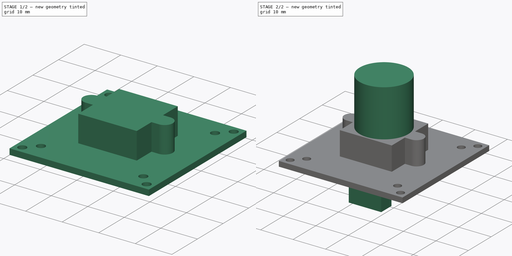
[diagram: build sequence overview — one tinted view per stage of 2, left to right]
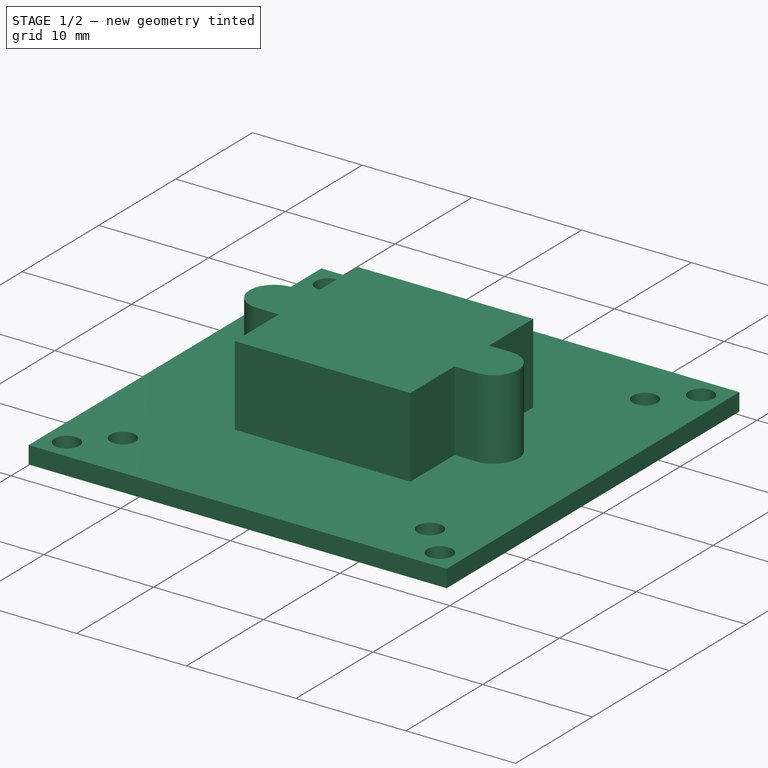
[diagram: stage 1 of 2 — iso view after this stage's code; geometry added in this stage tinted green]
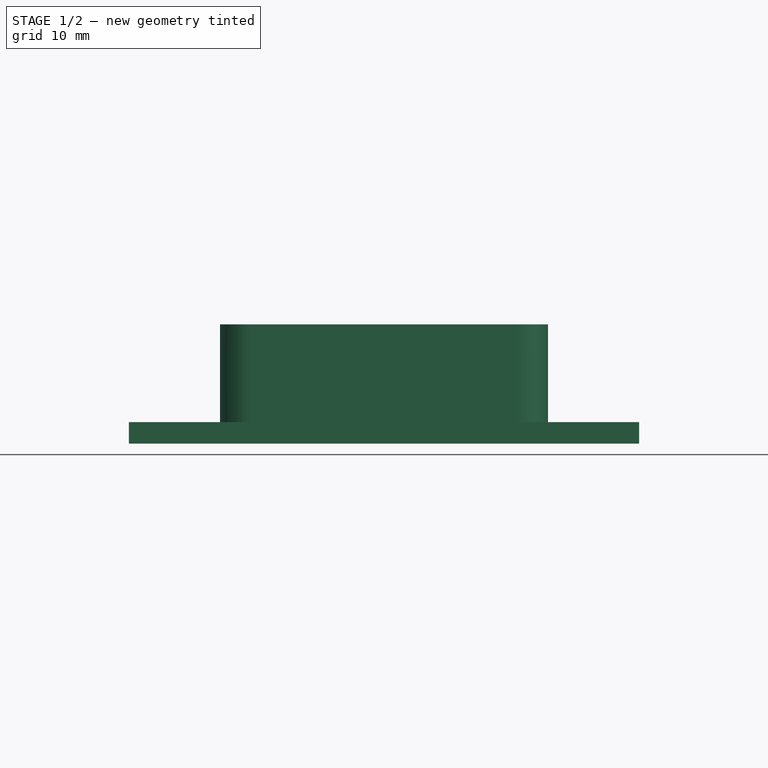
[diagram: stage 1 of 2 — front view after this stage's code; geometry added in this stage tinted green]
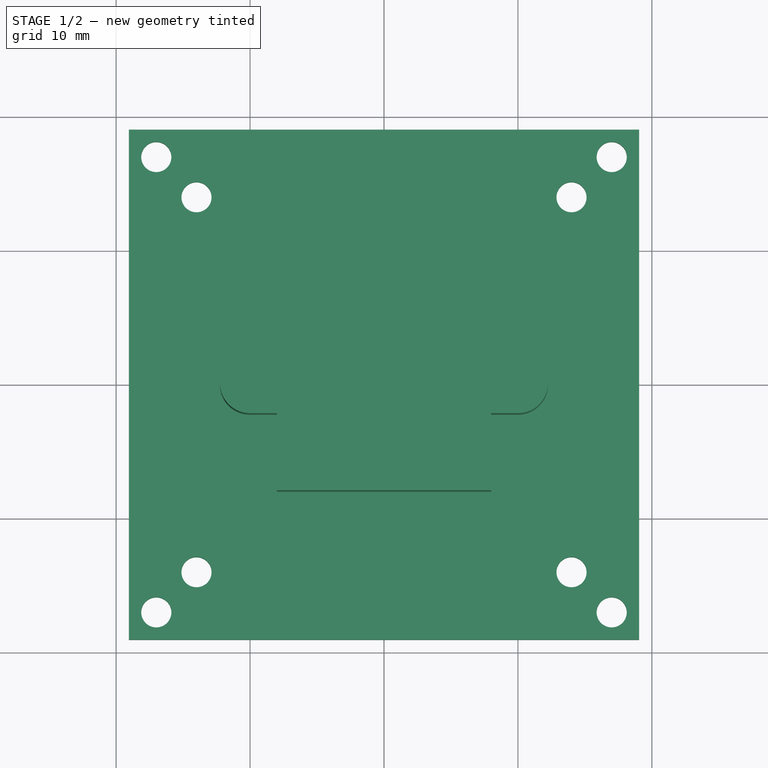
[diagram: stage 1 of 2 — top view after this stage's code; geometry added in this stage tinted green]
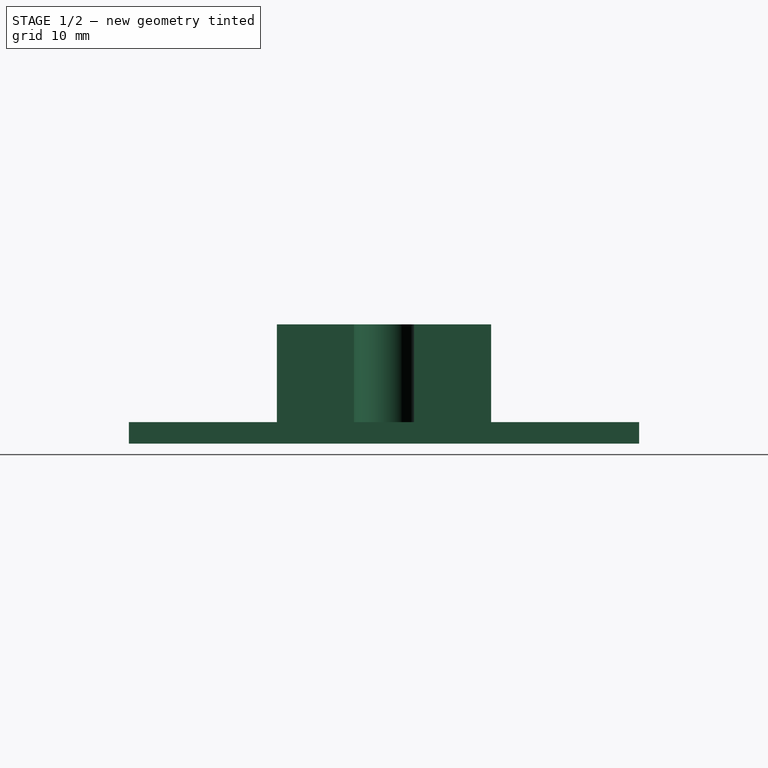
[diagram: stage 1 of 2 — right view after this stage's code; geometry added in this stage tinted green]
FCSTD DOCUMENT  (FreeCAD 2021.922R24301 +4188 (Git))
Label: OTS-0002-00_usb-webcam
License: All rights reserved
LicenseURL: http://en.wikipedia.org/wiki/All_rights_reserved
objects: Sketcher::SketchObject×4, PartDesign::Pad×4, PartDesign::Plane×2, PartDesign::Body×1
note: 19 computed .brp shape members not serialized (recipe doc carries the construction recipe); baked Part::Feature solids carry a one-line shape summary decoded from their .brp

FEATURE [Sketcher::SketchObject] Sketch
  FullyConstrained = true
  MapMode = 5
  Support = -> [XY_Plane]
  sketch-geometry (24):
    g0: LineSegment StartX=-19.05 StartY=19.05 StartZ=0 EndX=19.05 EndY=19.05 EndZ=0
    g1: LineSegment StartX=19.05 StartY=19.05 StartZ=0 EndX=19.05 EndY=-19.05 EndZ=0
    g2: LineSegment StartX=19.05 StartY=-19.05 StartZ=0 EndX=-19.05 EndY=-19.05 EndZ=0
    g3: LineSegment StartX=-19.05 StartY=-19.05 StartZ=0 EndX=-19.05 EndY=19.05 EndZ=0
    g4: LineSegment [constr] StartX=-14 StartY=14 StartZ=0 EndX=14 EndY=14 EndZ=0
    g5: LineSegment [constr] StartX=14 StartY=14 StartZ=0 EndX=14 EndY=-14 EndZ=0
    g6: LineSegment [constr] StartX=14 StartY=-14 StartZ=0 EndX=-14 EndY=-14 EndZ=0
    g7: LineSegment [constr] StartX=-14 StartY=-14 StartZ=0 EndX=-14 EndY=14 EndZ=0
    g8: Circle CenterX=-14 CenterY=14 CenterZ=0 NormalX=0 NormalY=0 NormalZ=1 AngleXU=0 Radius=1.125
    g9: Circle CenterX=14 CenterY=14 CenterZ=0 NormalX=0 NormalY=0 NormalZ=1 AngleXU=0 Radius=1.125
    g10: Circle CenterX=14 CenterY=-14 CenterZ=0 NormalX=0 NormalY=0 NormalZ=1 AngleXU=0 Radius=1.125
    g11: Circle CenterX=-14 CenterY=-14 CenterZ=0 NormalX=0 NormalY=0 NormalZ=1 AngleXU=0 Radius=1.125
    g12: LineSegment [constr] StartX=-17 StartY=17 StartZ=0 EndX=17 EndY=17 EndZ=0
    g13: LineSegment [constr] StartX=17 StartY=17 StartZ=0 EndX=17 EndY=-17 EndZ=0
    g14: LineSegment [constr] StartX=17 StartY=-17 StartZ=0 EndX=-17 EndY=-17 EndZ=0
    g15: LineSegment [constr] StartX=-17 StartY=-17 StartZ=0 EndX=-17 EndY=17 EndZ=0
    g16: Circle CenterX=-17 CenterY=17 CenterZ=0 NormalX=0 NormalY=0 NormalZ=1 AngleXU=0 Radius=1.125
    g17: Circle CenterX=17 CenterY=17 CenterZ=0 NormalX=0 NormalY=0 NormalZ=1 AngleXU=0 Radius=1.125
    g18: Circle CenterX=17 CenterY=-17 CenterZ=0 NormalX=0 NormalY=0 NormalZ=1 AngleXU=0 Radius=1.125
    g19: Circle CenterX=-17 CenterY=-17 CenterZ=0 NormalX=0 NormalY=0 NormalZ=1 AngleXU=0 Radius=1.125
    g20: LineSegment [constr] StartX=-16 StartY=16 StartZ=0 EndX=16 EndY=16 EndZ=0
    g21: LineSegment [constr] StartX=16 StartY=16 StartZ=0 EndX=16 EndY=-16 EndZ=0
    g22: LineSegment [constr] StartX=16 StartY=-16 StartZ=0 EndX=-16 EndY=-16 EndZ=0
    g23: LineSegment [constr] StartX=-16 StartY=-16 StartZ=0 EndX=-16 EndY=16 EndZ=0
  constraints (58):
    c: Coincident(g0,g1)
    c: Coincident(g1,g2)
    c: Coincident(g2,g3)
    c: Coincident(g3,g0)
    c: Horizontal(g2)
    c: Vertical(g1)
    c: DistanceX(g0,g0) = 38.1
    c: DistanceY(g3,g3) = 38.1
    c: Symmetric(g0,g0,g-2)
    c: Symmetric(g2,g0,g-1)
    c: Coincident(g4,g5)
    c: Coincident(g5,g6)
    c: Coincident(g6,g7)
    c: Coincident(g7,g4)
    c: Horizontal(g4)
    c: Vertical(g7)
    c: DistanceX(g4,g4) = 28
    c: Coincident(g8,g4)
    c: Diameter(g8) = 2.25
    c: DistanceY(g5,g5) = 28
    c: Symmetric(g4,g5,g-1)
    c: Symmetric(g5,g6,g-2)
    c: Coincident(g9,g4)
    c: Coincident(g10,g5)
    c: Coincident(g11,g6)
    c: Equal(g9,g10)
    c: Equal(g10,g11)
    c: Equal(g11,g8)
    c: Coincident(g12,g13)
    c: Coincident(g13,g14)
    c: Coincident(g14,g15)
    c: Coincident(g15,g12)
    c: Horizontal(g12)
    c: Horizontal(g14)
    c: Vertical(g13)
    c: Vertical(g15)
    c: DistanceX(g12,g12) = 34
    c: Equal(g13,g12)
    c: Symmetric(g14,g12,g-1)
    c: Coincident(g16,g12)
    c: Coincident(g17,g12)
    c: Coincident(g18,g13)
    c: Coincident(g19,g14)
    c: Equal(g16,g19)
    c: Equal(g19,g18)
    c: Equal(g18,g17)
    c: Diameter(g18) = 2.25
    c: Coincident(g20,g21)
    c: Coincident(g21,g22)
    c: Coincident(g22,g23)
    c: Coincident(g23,g20)
    c: Horizontal(g20)
    c: Horizontal(g22)
    c: Vertical(g21)
    c: Vertical(g23)
    c: Symmetric(g20,g21,g-1)
    c: Equal(g21,g20)
    c: DistanceY(g21,g21) = 32
FEATURE [PartDesign::Pad] Pad
  AddSubType = 0
  CheckUpToFaceLimits = true
  ClaimChildren = false
  Direction = (1,1,1)
  Fit = 0
  FitJoin = 0
  InnerFit = 0
  InnerFitJoin = 0
  InnerTaperAngle = 0
  InnerTaperAngleRev = 0
  Length = 1.6
  Length2 = 100
  NewSolid = false
  Profile = -> Sketch
  Reversed = true
  Suppress = false
  Type = 0
  _ProfileBasedVersion = 0
FEATURE [Sketcher::SketchObject] Sketch001
  FullyConstrained = true
  MapMode = 5
  Support = -> [XY_Plane]
  sketch-geometry (12):
    g0: LineSegment StartX=-8 StartY=2.25 StartZ=0 EndX=-8 EndY=8 EndZ=0
    g1: LineSegment StartX=-8 StartY=8 StartZ=0 EndX=8 EndY=8 EndZ=0
    g2: LineSegment StartX=8 StartY=8 StartZ=0 EndX=8 EndY=2.25 EndZ=0
    g3: LineSegment StartX=-8 StartY=-2.25 StartZ=0 EndX=-8 EndY=-8 EndZ=0
    g4: LineSegment StartX=-8 StartY=-8 StartZ=0 EndX=8 EndY=-8 EndZ=0
    g5: LineSegment StartX=8 StartY=-8 StartZ=0 EndX=8 EndY=-2.25 EndZ=0
    g6: ArcOfCircle CenterX=-10 CenterY=0 CenterZ=0 NormalX=0 NormalY=0 NormalZ=1 AngleXU=0 Radius=2.25 StartAngle=1.5708 EndAngle=4.71239
    g7: ArcOfCircle CenterX=10 CenterY=0 CenterZ=0 NormalX=0 NormalY=0 NormalZ=1 AngleXU=0 Radius=2.25 StartAngle=4.71239 EndAngle=7.85398
    g8: LineSegment StartX=-10 StartY=2.25 StartZ=0 EndX=-8 EndY=2.25 EndZ=0
    g9: LineSegment StartX=-9.99999 StartY=-2.25 StartZ=0 EndX=-8 EndY=-2.25 EndZ=0
    g10: LineSegment StartX=8 StartY=2.25 StartZ=0 EndX=10 EndY=2.25 EndZ=0
    g11: LineSegment StartX=8 StartY=-2.25 StartZ=0 EndX=10 EndY=-2.25 EndZ=0
  constraints (34):
    c: Vertical(g0)
    c: Coincident(g0,g1)
    c: Coincident(g1,g2)
    c: Vertical(g2)
    c: Vertical(g3)
    c: Coincident(g3,g4)
    c: Horizontal(g4)
    c: Coincident(g4,g5)
    c: Vertical(g5)
    c: PointOnObject(g6,g-1)
    c: Tangent(g6,g8) = 1.5708
    c: Coincident(g2,g10)
    c: Coincident(g10,g7)
    c: Coincident(g5,g11)
    c: Coincident(g11,g7)
    c: Coincident(g8,g0)
    c: Horizontal(g8)
    c: Horizontal(g9)
    c: Coincident(g9,g3)
    c: Coincident(g9,g6)
    c: Horizontal(g10)
    c: Horizontal(g11)
    c: Tangent(g7,g10)
    c: Tangent(g7,g11)
    c: Tangent(g6,g9)
    c: DistanceX(g1,g1) = 16
    c: DistanceY(g3,g0) = 16
    c: PointOnObject(g0,g3)
    c: Symmetric(g0,g1,g-2)
    c: Symmetric(g1,g4,g-1)
    c: DistanceY(g5,g2) = 4.5
    c: DistanceY(g3,g0) = 4.5
    c: DistanceX(g6,g7) = 20
    c: Symmetric(g7,g6,g-2)
FEATURE [PartDesign::Pad] Pad001
  AddSubType = 0
  BaseFeature = -> Pad
  CheckUpToFaceLimits = true
  ClaimChildren = false
  Direction = (1,1,1)
  Fit = 0
  FitJoin = 0
  InnerFit = 0
  InnerFitJoin = 0
  InnerTaperAngle = 0
  InnerTaperAngleRev = 0
  Length = 7.3
  Length2 = 100
  NewSolid = false
  Profile = -> Sketch001
  Suppress = false
  Type = 0
  _ProfileBasedVersion = 0
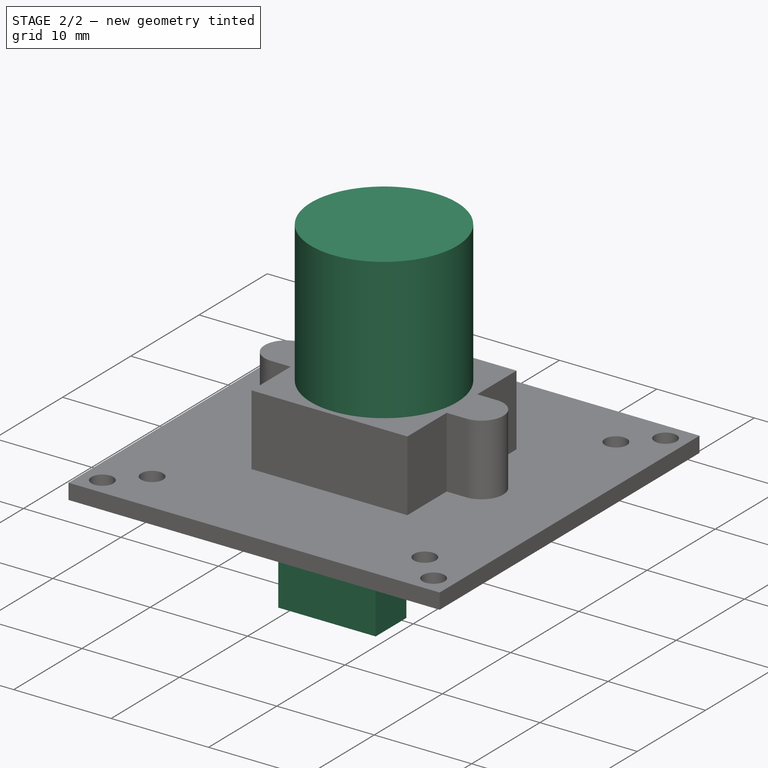
[diagram: stage 2 of 2 — iso view after this stage's code; geometry added in this stage tinted green]
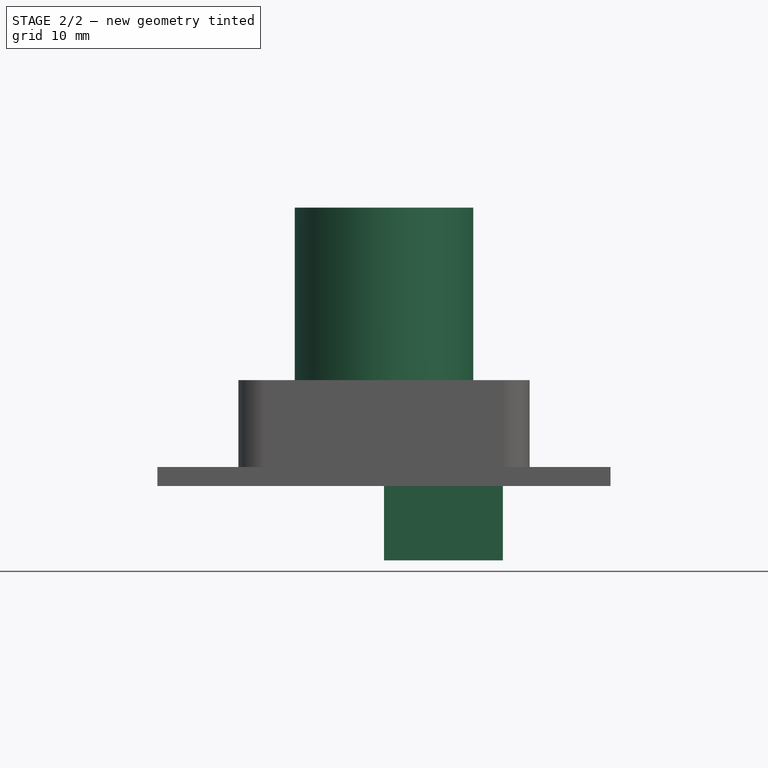
[diagram: stage 2 of 2 — front view after this stage's code; geometry added in this stage tinted green]
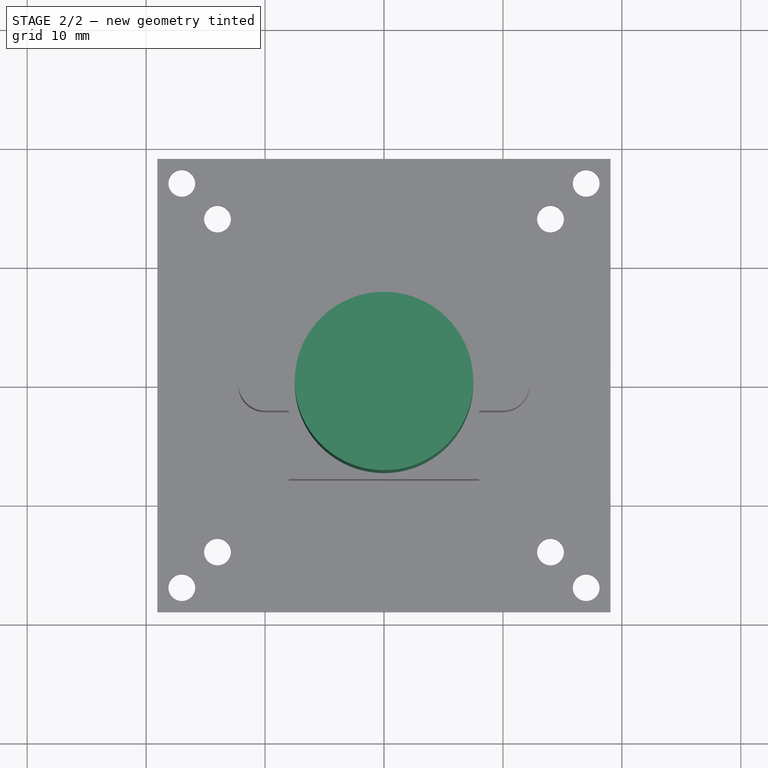
[diagram: stage 2 of 2 — top view after this stage's code; geometry added in this stage tinted green]
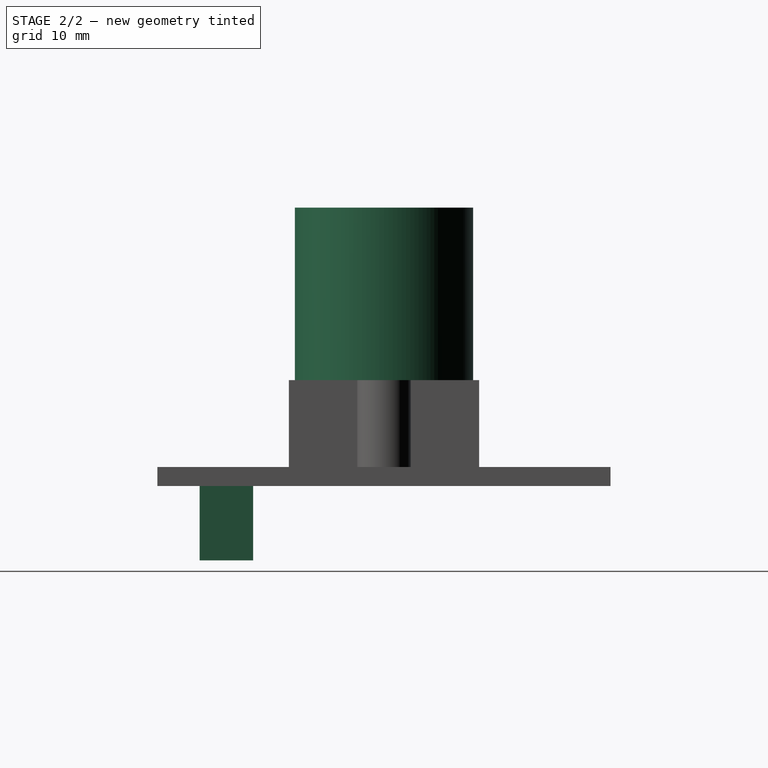
[diagram: stage 2 of 2 — right view after this stage's code; geometry added in this stage tinted green]
FEATURE [PartDesign::Plane] DatumPlane
  Length = 10
  MapMode = 5
  MinimumLength = 10
  MinimumWidth = 10
  Placement = pos=(0,0,7.3) rot=(0,0,1;0rad)
  ResizeMode = 0
  Support = -> [Pad001]
  Width = 10
FEATURE [Sketcher::SketchObject] Sketch002
  FullyConstrained = true
  MapMode = 5
  Placement = pos=(0,0,7.3) rot=(0,0,1;0rad)
  Support = -> [DatumPlane]
  sketch-geometry (1):
    g0: Circle CenterX=0 CenterY=0 CenterZ=0 NormalX=0 NormalY=0 NormalZ=1 AngleXU=0 Radius=7.5
  constraints (2):
    c: Coincident(g0,g-1)
    c: Diameter(g0) = 15
FEATURE [PartDesign::Pad] Pad002
  AddSubType = 0
  BaseFeature = -> Pad001
  CheckUpToFaceLimits = true
  ClaimChildren = false
  Direction = (1,1,1)
  Fit = 0
  FitJoin = 0
  InnerFit = 0
  InnerFitJoin = 0
  InnerTaperAngle = 0
  InnerTaperAngleRev = 0
  Length = 14.5
  Length2 = 100
  NewSolid = false
  Profile = -> Sketch002
  Suppress = false
  Type = 0
  _ProfileBasedVersion = 0
FEATURE [PartDesign::Plane] DatumPlane001
  Length = 60
  MapMode = 5
  MinimumLength = 10
  MinimumWidth = 10
  Placement = pos=(0,0,-1.6) rot=(1,0,0;3.14159rad)
  ResizeMode = 0
  Support = -> [Pad002]
  Width = 60
FEATURE [Sketcher::SketchObject] Sketch003
  FullyConstrained = true
  MapMode = 5
  Placement = pos=(0,0,-1.6) rot=(1,0,0;3.14159rad)
  Support = -> [DatumPlane001]
  sketch-geometry (4):
    g0: LineSegment StartX=0 StartY=15.5 StartZ=0 EndX=10 EndY=15.5 EndZ=0
    g1: LineSegment StartX=10 StartY=15.5 StartZ=0 EndX=10 EndY=11 EndZ=0
    g2: LineSegment StartX=10 StartY=11 StartZ=0 EndX=0 EndY=11 EndZ=0
    g3: LineSegment StartX=0 StartY=11 StartZ=0 EndX=0 EndY=15.5 EndZ=0
  constraints (12):
    c: Coincident(g0,g1)
    c: Coincident(g1,g2)
    c: Coincident(g2,g3)
    c: Coincident(g3,g0)
    c: Horizontal(g0)
    c: Horizontal(g2)
    c: Vertical(g1)
    c: Vertical(g3)
    c: DistanceX(g0,g0) = 10
    c: DistanceY(g1,g1) = 4.5
    c: PointOnObject(g-1,g3)
    c: DistanceY(g-1,g2) = 11
FEATURE [PartDesign::Pad] Pad003
  AddSubType = 0
  BaseFeature = -> Pad002
  CheckUpToFaceLimits = true
  ClaimChildren = false
  Direction = (1,1,1)
  Fit = 0
  FitJoin = 0
  InnerFit = 0
  InnerFitJoin = 0
  InnerTaperAngle = 0
  InnerTaperAngleRev = 0
  Length = 6.25
  Length2 = 100
  NewSolid = false
  Profile = -> Sketch003
  Suppress = false
  Type = 0
  _ProfileBasedVersion = 0
FEATURE [PartDesign::Body] Body
  AutoGroupSolids = false
  ExportMode = 0
  Group = -> [Sketch,Pad,Sketch001,Pad001,DatumPlane,Sketch002,Pad002,DatumPlane001,Sketch003,Pad003]
  Origin = -> Origin
  Tip = -> Pad003
  _ExportChildren = -> [Pad,Pad001,DatumPlane,Pad002,DatumPlane001,Pad003]
  _GroupVersion = 1
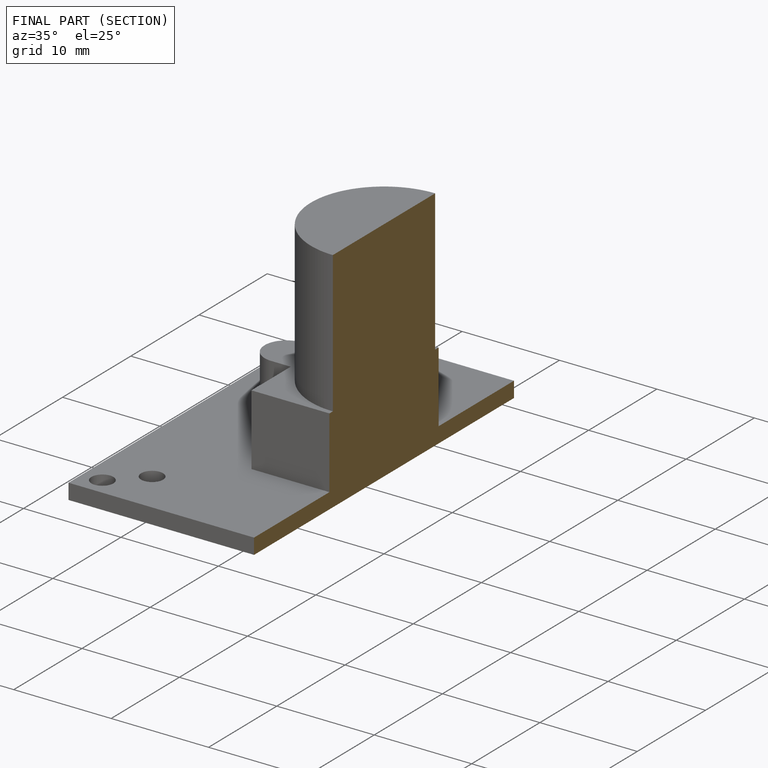
[diagram: finished part — half-section view (interior)]
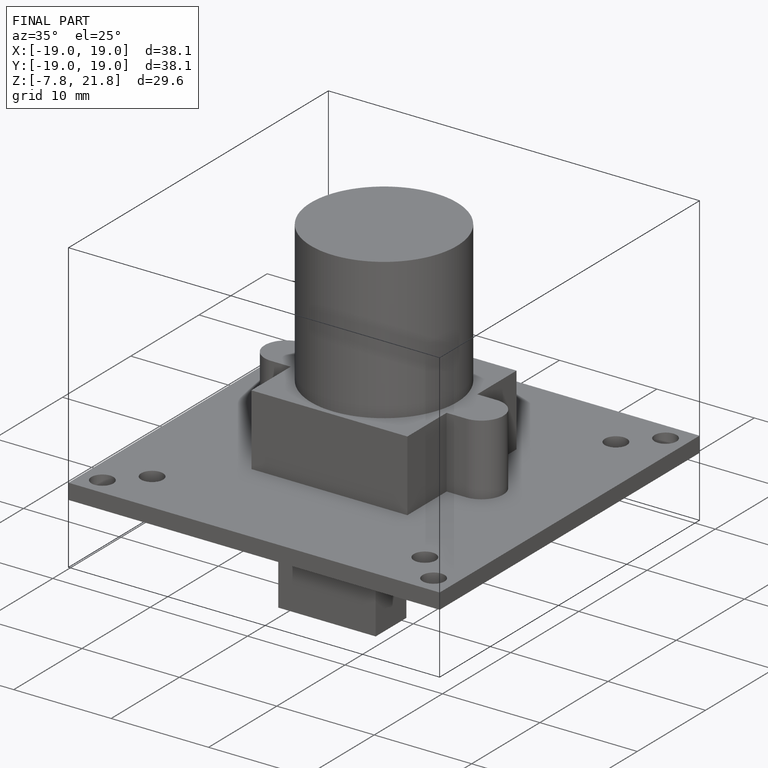
[diagram: finished part — iso view with bounding-box wireframe]
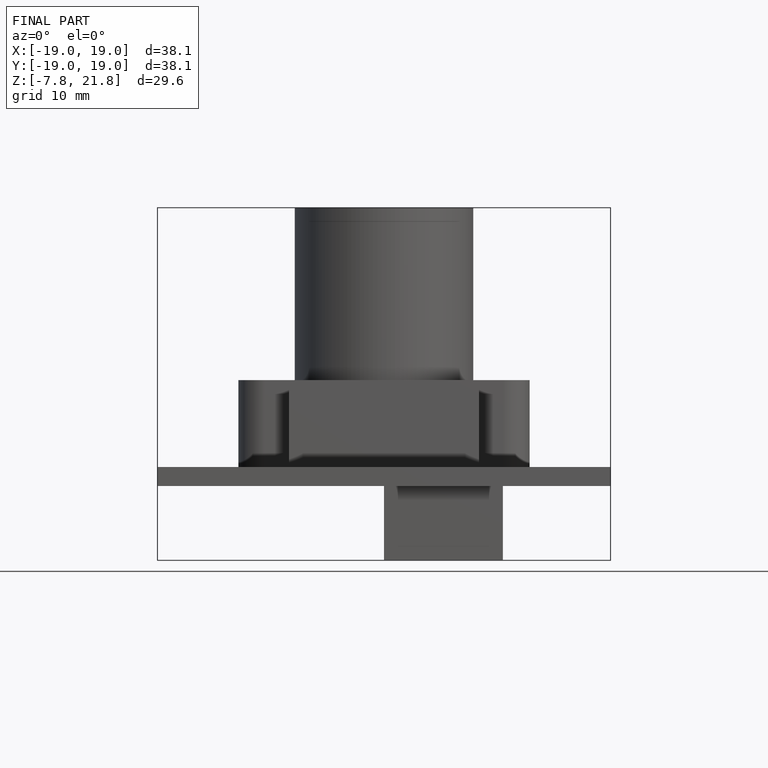
[diagram: finished part — front view with bounding-box wireframe]
